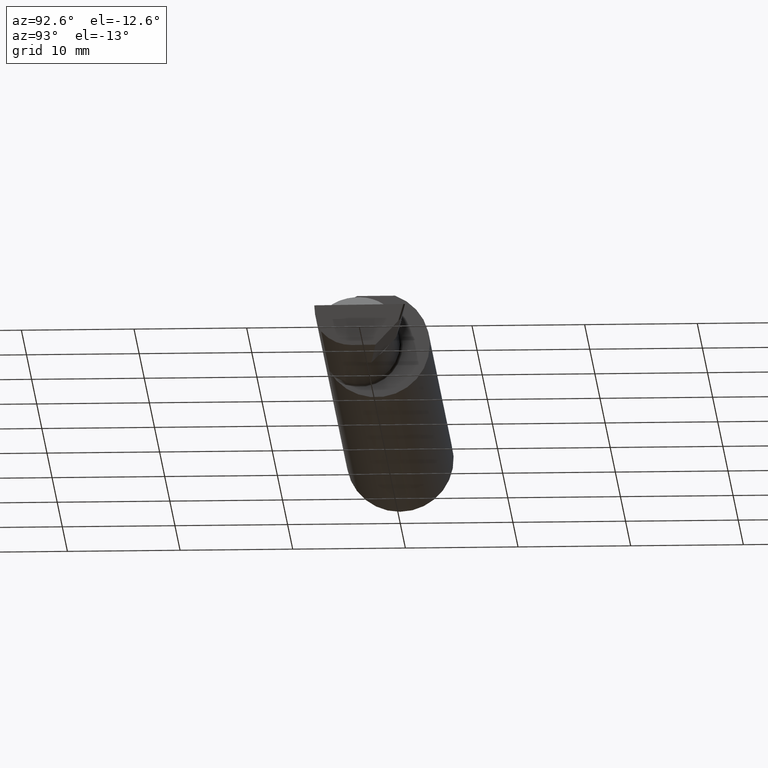
[diagram: clean part render]
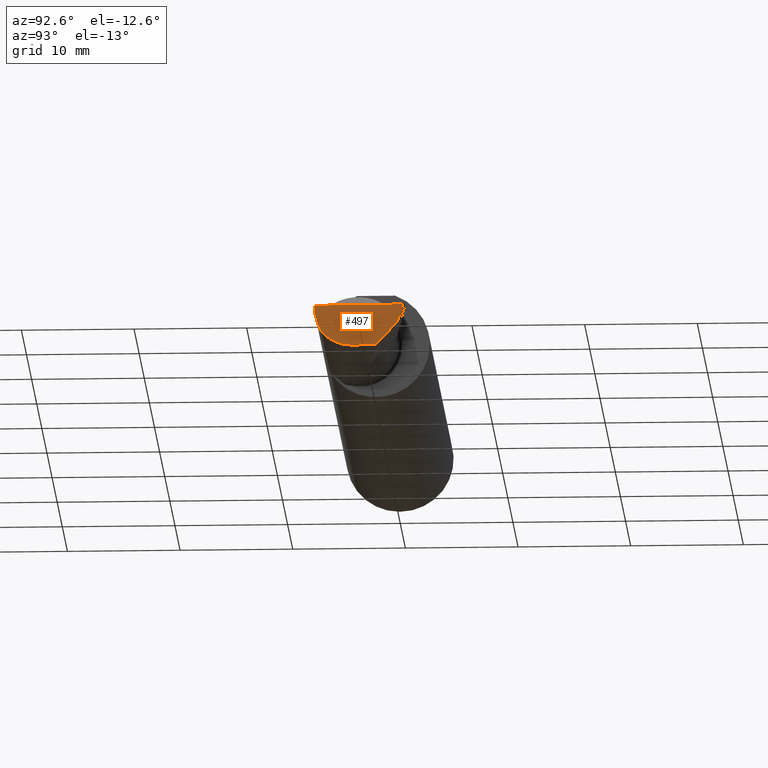
[diagram: same view with one face highlighted and labeled with its STEP entity id]
A machine part, auxiliary view. The second image highlights one B-rep face of the part: STEP entity #497.
In plain terms, the highlighted planar face has unit normal (-0.9922, 0.026, 0.1219).
Its self-contained STEP definition (entity closure, byte-faithful):
#1 = EDGE_CURVE ( 'NONE', #558, #126, #669, .T. ) ;
#2 = CARTESIAN_POINT ( 'NONE',  ( 2.499806390372749210, 0.1232563466314183787, 6.833120963331979760E-17 ) ) ;
#9 = CARTESIAN_POINT ( 'NONE',  ( 2.491672876940991710, -0.1873499999999999888, 6.915950918908297591E-17 ) ) ;
#23 = CARTESIAN_POINT ( 'NONE',  ( 2.491672876940991710, -0.1873499999999999888, 6.915950918908297591E-17 ) ) ;
#36 = CARTESIAN_POINT ( 'NONE',  ( 2.475850273311264615, -0.1244607267090816621, -0.1422282308645907711 ) ) ;
#61 = CARTESIAN_POINT ( 'NONE',  ( 2.493766568580444432, 0.1168246249203732934, -0.04780233936830599606 ) ) ;
#66 = ORIENTED_EDGE ( 'NONE', *, *, #1, .F. ) ;
#68 = VERTEX_POINT ( 'NONE', #80 ) ;
#79 = CARTESIAN_POINT ( 'NONE',  ( 2.484117089522337452, -0.1792580844883771007, -0.06324101202936138755 ) ) ;
#80 = CARTESIAN_POINT ( 'NONE',  ( 2.491786964307025176, 0.1037103972642545030, -0.06112352112763053125 ) ) ;
#84 = DIRECTION ( 'NONE',  ( -0.9922060308645608284, 0.02598182930461468559, 0.1218693434050591162 ) ) ;
#119 = LINE ( 'NONE', #61, #608 ) ;
#126 = VERTEX_POINT ( 'NONE', #417 ) ;
#133 = VECTOR ( 'NONE', #406, 39.37007874015748143 ) ;
#136 = CARTESIAN_POINT ( 'NONE',  ( 2.481080296960508580, -0.1635956445993030084, -0.09130436773856176469 ) ) ;
#148 = CARTESIAN_POINT ( 'NONE',  ( 2.490039159128059953, -0.2497391662021650194, 6.932588350567417155E-17 ) ) ;
#176 = CARTESIAN_POINT ( 'NONE',  ( 2.487725449370724817, -0.1873500000000000443, -0.03213820089768506388 ) ) ;
#244 = AXIS2_PLACEMENT_3D ( 'NONE', #36, #84, #676 ) ;
#252 = CARTESIAN_POINT ( 'NONE',  ( 2.481080296960508580, -0.1635956445993030084, -0.09130436773856176469 ) ) ;
#254 = CARTESIAN_POINT ( 'NONE',  ( 2.480058035321255794, 0.02601009779168077587, -0.1400500000000000633 ) ) ;
#262 = VERTEX_POINT ( 'NONE', #535 ) ;
#277 = VERTEX_POINT ( 'NONE', #9 ) ;
#282 = PLANE ( 'NONE',  #244 ) ;
#342 = ORIENTED_EDGE ( 'NONE', *, *, #370, .T. ) ;
#370 = EDGE_CURVE ( 'NONE', #558, #68, #119, .T. ) ;
#380 =( BOUNDED_CURVE ( )  B_SPLINE_CURVE ( 3, ( #252, #577, #684, #581 ),
 .UNSPECIFIED., .F., .T. ) 
 B_SPLINE_CURVE_WITH_KNOTS ( ( 4, 4 ),
 ( 5.632580117768155148, 6.493234751459282528 ),
 .UNSPECIFIED. ) 
 CURVE ( )  GEOMETRIC_REPRESENTATION_ITEM ( )  RATIONAL_B_SPLINE_CURVE ( ( 1.000000000000000000, 0.9392195014330944058, 0.9392195014330944058, 1.000000000000000000 ) ) 
 REPRESENTATION_ITEM ( '' )  );
#388 = ORIENTED_EDGE ( 'NONE', *, *, #572, .T. ) ;
#394 = CARTESIAN_POINT ( 'NONE',  ( 2.477889026591898247, -0.05682100378451882677, -0.1400500000000000633 ) ) ;
#398 = FACE_OUTER_BOUND ( 'NONE', #675, .T. ) ;
#406 = DIRECTION ( 'NONE',  ( -0.02617694830779365364, -0.9996573249755593693, -8.535148296544462419E-17 ) ) ;
#417 = CARTESIAN_POINT ( 'NONE',  ( 2.477873865042410806, -0.05739999999999999963, -0.1400500000000000633 ) ) ;
#422 = EDGE_CURVE ( 'NONE', #262, #277, #629, .T. ) ;
#463 = LINE ( 'NONE', #670, #533 ) ;
#467 = EDGE_CURVE ( 'NONE', #68, #644, #463, .T. ) ;
#488 = DIRECTION ( 'NONE',  ( 0.1053106618240635256, 0.6976485211320200275, 0.7086580314005359593 ) ) ;
#497 = ADVANCED_FACE ( 'NONE', ( #398 ), #282, .F. ) ;
#498 = ORIENTED_EDGE ( 'NONE', *, *, #422, .F. ) ;
#533 = VECTOR ( 'NONE', #678, 39.37007874015748854 ) ;
#535 = CARTESIAN_POINT ( 'NONE',  ( 2.481080296960508580, -0.1635956445993030084, -0.09130436773856176469 ) ) ;
#558 = VERTEX_POINT ( 'NONE', #254 ) ;
#572 = EDGE_CURVE ( 'NONE', #262, #126, #380, .T. ) ;
#574 = VECTOR ( 'NONE', #583, 39.37007874015748854 ) ;
#577 = CARTESIAN_POINT ( 'NONE',  ( 2.477925907309857401, -0.1365595166907235813, -0.1227499502647108609 ) ) ;
#581 = CARTESIAN_POINT ( 'NONE',  ( 2.477873865042410806, -0.05739999999999999963, -0.1400500000000000633 ) ) ;
#583 = DIRECTION ( 'NONE',  ( 0.02617694830779364323, 0.9996573249755593693, -2.665804247635780349E-18 ) ) ;
#593 = EDGE_CURVE ( 'NONE', #277, #644, #688, .T. ) ;
#608 = VECTOR ( 'NONE', #488, 39.37007874015748854 ) ;
#617 = ORIENTED_EDGE ( 'NONE', *, *, #593, .F. ) ;
#629 =( BOUNDED_CURVE ( )  B_SPLINE_CURVE ( 3, ( #136, #79, #176, #23 ),
 .UNSPECIFIED., .F., .T. ) 
 B_SPLINE_CURVE_WITH_KNOTS ( ( 4, 4 ),
 ( 0.8516985021657650368, 1.360746882515200484 ),
 .UNSPECIFIED. ) 
 CURVE ( )  GEOMETRIC_REPRESENTATION_ITEM ( )  RATIONAL_B_SPLINE_CURVE ( ( 1.000000000000000000, 0.9785221379938656705, 0.9785221379938656705, 1.000000000000000000 ) ) 
 REPRESENTATION_ITEM ( '' )  );
#644 = VERTEX_POINT ( 'NONE', #2 ) ;
#656 = ORIENTED_EDGE ( 'NONE', *, *, #467, .T. ) ;
#669 = LINE ( 'NONE', #394, #133 ) ;
#670 = CARTESIAN_POINT ( 'NONE',  ( 2.500086462864346881, 0.1239389743774739899, 0.002134693520102429881 ) ) ;
#675 = EDGE_LOOP ( 'NONE', ( #342, #656, #617, #498, #388, #66 ) ) ;
#676 = DIRECTION ( 'NONE',  ( 0.1219104985251942275, 0.000000000000000000, 0.9925410975618785825 ) ) ;
#678 = DIRECTION ( 'NONE',  ( 0.1240019227988267553, 0.3022330132596590113, 0.9451342385281470415 ) ) ;
#684 = CARTESIAN_POINT ( 'NONE',  ( 2.476787929832031221, -0.09887019258091186980, -0.1400500000000000356 ) ) ;
#688 = LINE ( 'NONE', #148, #574 ) ;